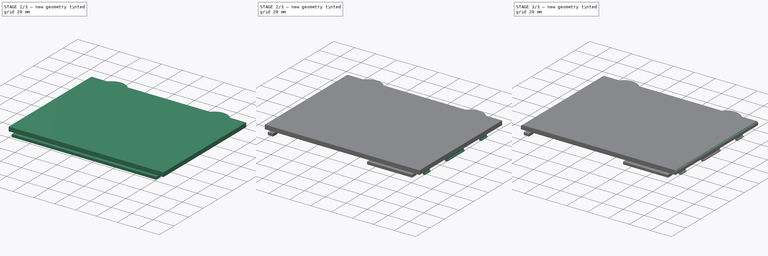
[diagram: build sequence overview — one tinted view per stage of 3, left to right]
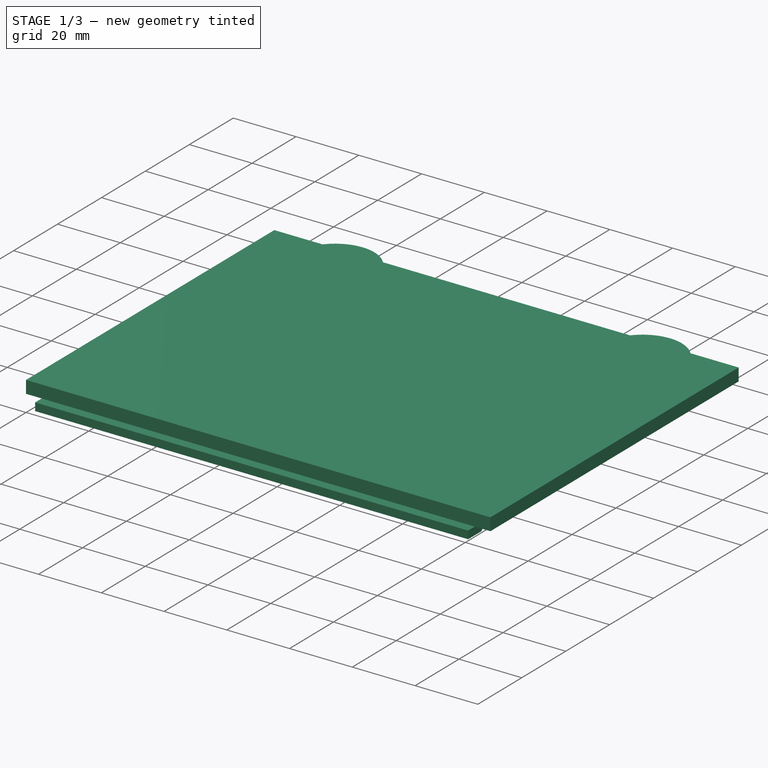
[diagram: stage 1 of 3 — iso view after this stage's code; geometry added in this stage tinted green]
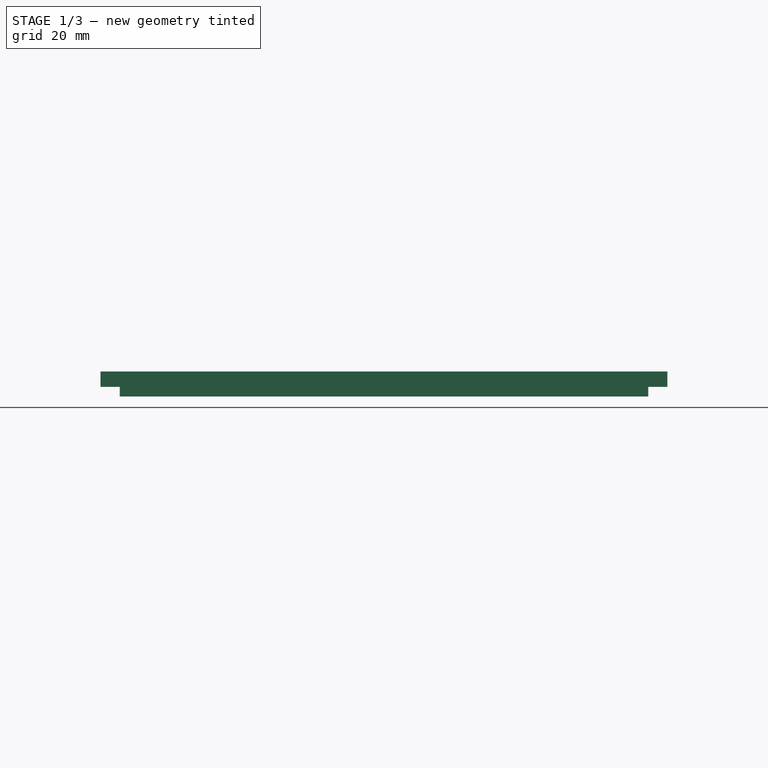
[diagram: stage 1 of 3 — front view after this stage's code; geometry added in this stage tinted green]
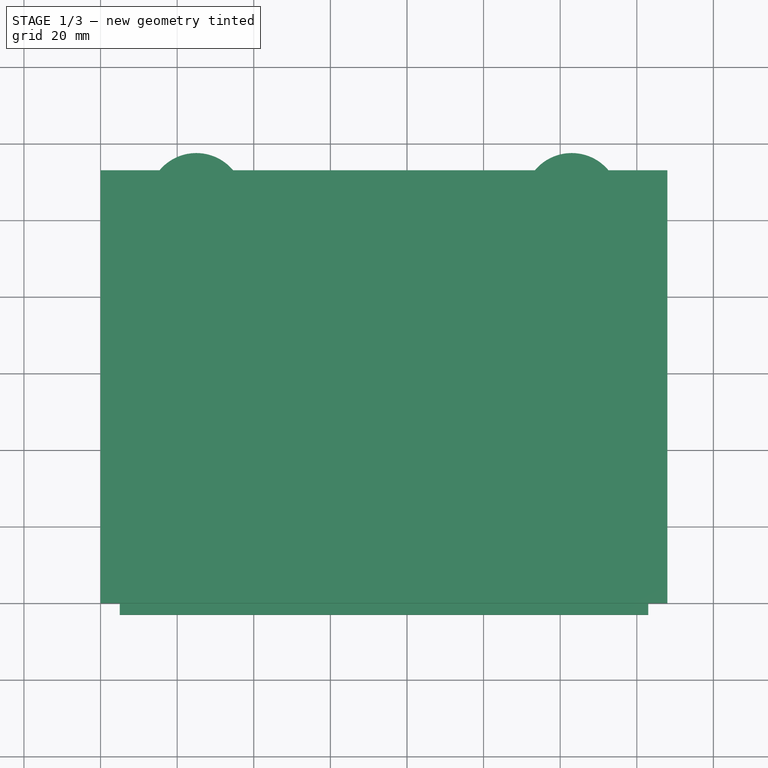
[diagram: stage 1 of 3 — top view after this stage's code; geometry added in this stage tinted green]
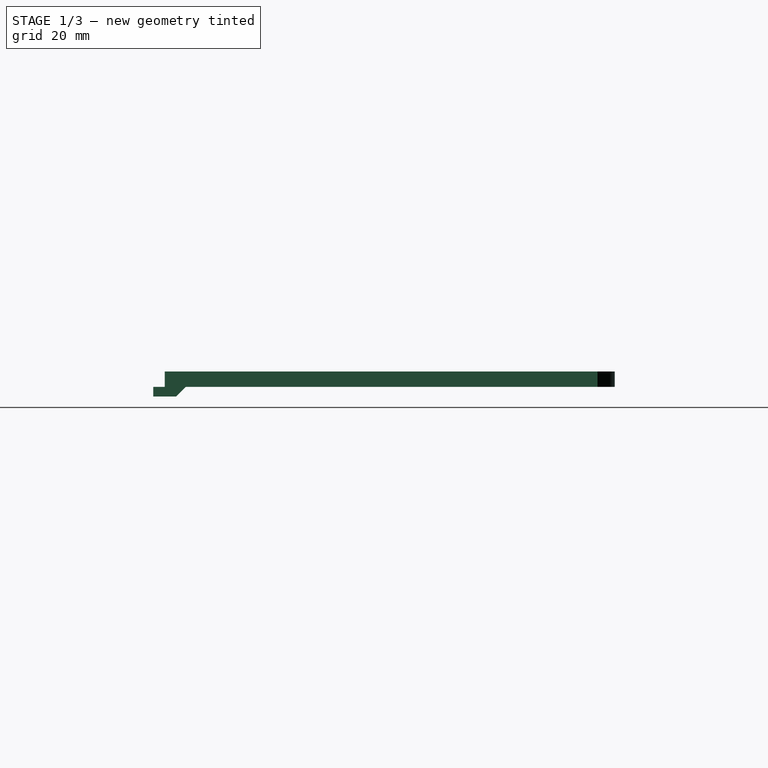
[diagram: stage 1 of 3 — right view after this stage's code; geometry added in this stage tinted green]
FCSTD DOCUMENT  (FreeCAD 0.21R33771 (Git))
Label: Lid
License: All rights reserved
LicenseURL: https://en.wikipedia.org/wiki/All_rights_reserved
objects: Sketcher::SketchObject×4, PartDesign::Pad×3, PartDesign::Fillet×2, PartDesign::Pocket×1, PartDesign::Body×1
note: 17 computed .brp shape members not serialized (recipe doc carries the construction recipe); baked Part::Feature solids carry a one-line shape summary decoded from their .brp

FEATURE [Sketcher::SketchObject] Sketch  label="Overall Outline"
  FullyConstrained = true
  MapMode = 5
  Support = -> [XY_Plane]
  sketch-geometry (8):
    g0: LineSegment StartX=0 StartY=0 StartZ=0 EndX=148 EndY=0 EndZ=0
    g1: LineSegment StartX=148 StartY=0 StartZ=0 EndX=148 EndY=113 EndZ=0
    g2: LineSegment StartX=0 StartY=113 StartZ=0 EndX=0 EndY=0 EndZ=0
    g3: ArcOfCircle CenterX=25 CenterY=105 CenterZ=0 NormalX=0 NormalY=0 NormalZ=1 AngleXU=0 Radius=12.5 StartAngle=0.694498 EndAngle=2.44709
    g4: ArcOfCircle CenterX=123 CenterY=105 CenterZ=0 NormalX=0 NormalY=0 NormalZ=1 AngleXU=0 Radius=12.5 StartAngle=0.694498 EndAngle=2.44709
    g5: LineSegment StartX=0 StartY=113 StartZ=0 EndX=15.3953 EndY=113 EndZ=0
    g6: LineSegment StartX=34.6047 StartY=113 StartZ=0 EndX=113.395 EndY=113 EndZ=0
    g7: LineSegment StartX=132.605 StartY=113 StartZ=0 EndX=148 EndY=113 EndZ=0
  constraints (25):
    c: Coincident(g0,g1)
    c: Coincident(g2,g0)
    c: Horizontal(g0)
    c: Vertical(g1)
    c: Vertical(g2)
    c: Coincident(g0,g-1)
    c: DistanceX(g0,g0) = 148
    c: DistanceY(g2,g2) = 113
    c: Coincident(g5,g2)
    c: Coincident(g5,g3)
    c: Horizontal(g5)
    c: Coincident(g6,g3)
    c: Coincident(g6,g4)
    c: Horizontal(g6)
    c: Coincident(g7,g4)
    c: Coincident(g7,g1)
    c: Horizontal(g7)
    c: Horizontal(g3,g4)
    c: DistanceY(g3) = 105
    c: Diameter(g3) = 25
    c: Horizontal(g3,g3)
    c: Horizontal(g4,g4)
    c: Equal(g3,g4)
    c: DistanceX(g2,g3) = 25
    c: DistanceX(g4,g1) = 25
FEATURE [PartDesign::Pad] Pad
  Direction = (0,0,1)
  Length = 4
  Length2 = 10
  Profile = -> Sketch
  ReferenceAxis = -> Sketch [N_Axis]
  Type = 0
FEATURE [Sketcher::SketchObject] Sketch001  label="Under catch"
  AttachmentOffset = pos=(0,0,-5) rot=(0,0,1;0rad)
  FullyConstrained = true
  MapMode = 5
  Placement = pos=(5,0,0) rot=(0.57735,-0.57735,-0.57735;2.0944rad)
  Support = -> [Pad]
  sketch-geometry (5):
    g0: LineSegment StartX=3 StartY=0 StartZ=0 EndX=3 EndY=-2.5 EndZ=0
    g1: LineSegment StartX=3 StartY=-2.5 StartZ=0 EndX=-3 EndY=-2.5 EndZ=0
    g2: LineSegment StartX=-3 StartY=-2.5 StartZ=0 EndX=-5.5 EndY=0 EndZ=0
    g3: LineSegment StartX=-5.5 StartY=0 StartZ=0 EndX=0 EndY=0 EndZ=0
    g4: LineSegment StartX=0 StartY=0 StartZ=0 EndX=3 EndY=0 EndZ=0
  constraints (14):
    c: PointOnObject(g0,g-1)
    c: Coincident(g1,g0)
    c: Horizontal(g1)
    c: Coincident(g2,g1)
    c: PointOnObject(g2,g-1)
    c: Coincident(g3,g2)
    c: DistanceX(g3,g3) = 5.5
    c: Coincident(g3,g-1)
    c: DistanceY(g2,g2) = 2.5
    c: DistanceX(g1,g1) = 6
    c: Coincident(g4,g3)
    c: Coincident(g4,g0)
    c: DistanceX(g0) = 3
    c: Vertical(g0)
FEATURE [PartDesign::Pad] Pad001
  BaseFeature = -> Pad
  Direction = (-1,0,0)
  Length = 138
  Length2 = 10
  Profile = -> Sketch001
  ReferenceAxis = -> Sketch001 [N_Axis]
  Reversed = true
  Type = 0
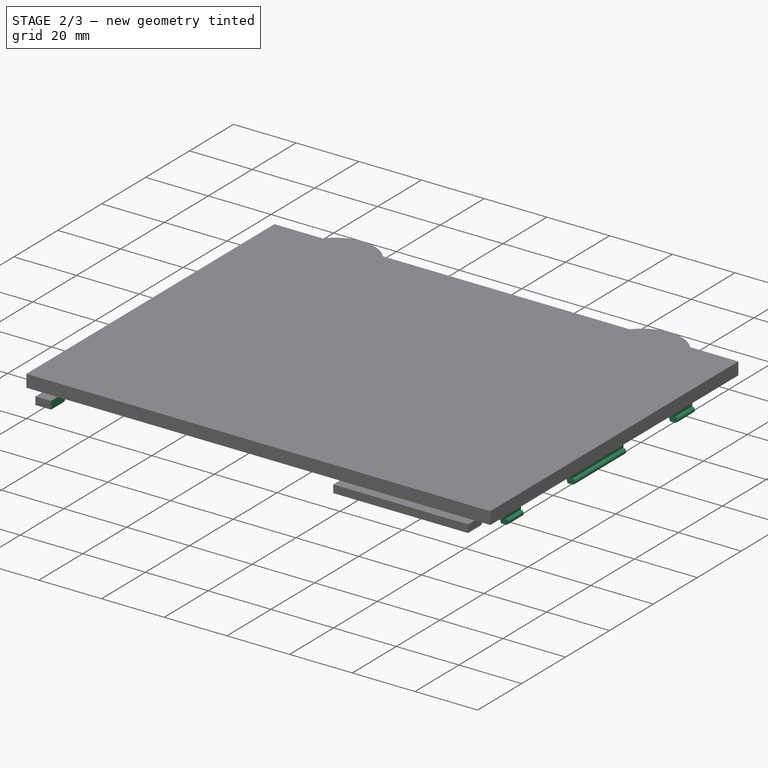
[diagram: stage 2 of 3 — iso view after this stage's code; geometry added in this stage tinted green]
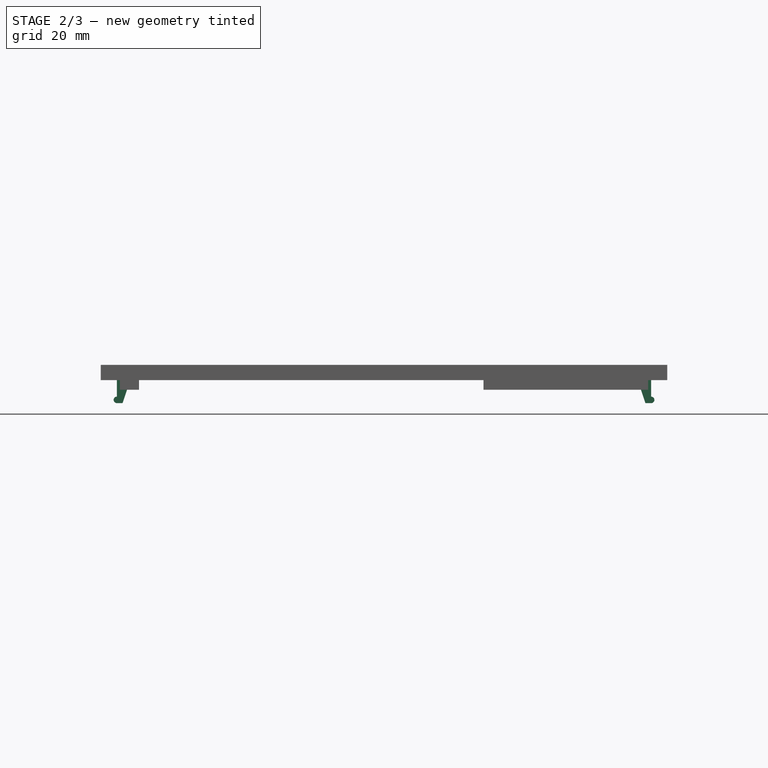
[diagram: stage 2 of 3 — front view after this stage's code; geometry added in this stage tinted green]
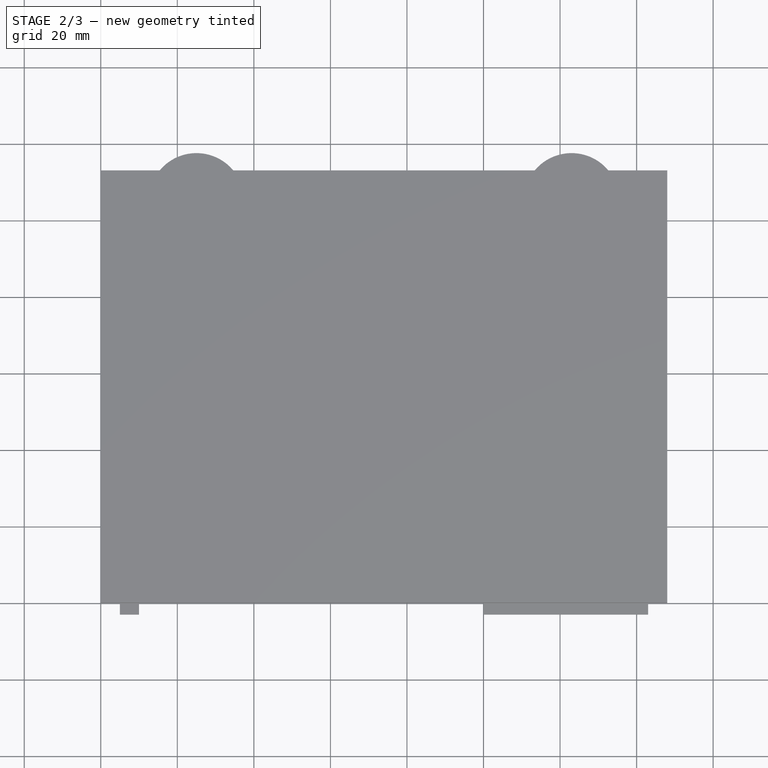
[diagram: stage 2 of 3 — top view after this stage's code; geometry added in this stage tinted green]
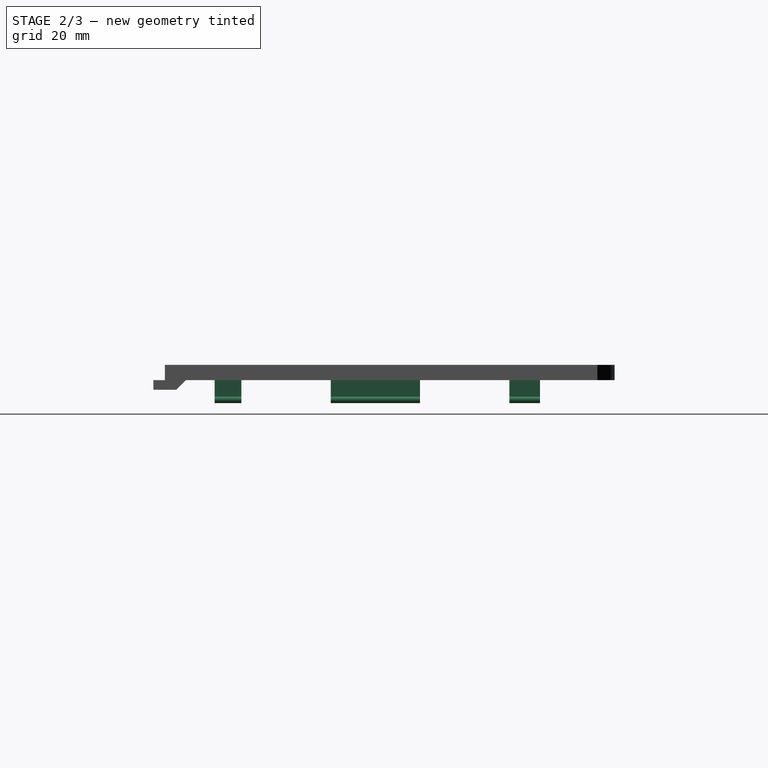
[diagram: stage 2 of 3 — right view after this stage's code; geometry added in this stage tinted green]
FEATURE [Sketcher::SketchObject] Sketch002
  AttachmentOffset = pos=(0,0,-13) rot=(0,0,1;0rad)
  FullyConstrained = true
  MapMode = 5
  Placement = pos=(0,13,-2.9e-15) rot=(1,0,0;1.5708rad)
  Support = -> [Pad001]
  sketch-geometry (10):
    g0: LineSegment StartX=143.8 StartY=0 StartZ=0 EndX=140.3 EndY=0 EndZ=0
    g1: LineSegment StartX=142.3 StartY=-6 StartZ=0 EndX=143.8 EndY=-6 EndZ=0
    g2: LineSegment StartX=143.8 StartY=0 StartZ=0 EndX=143.8 EndY=-4.3 EndZ=0
    g3: ArcOfCircle CenterX=143.8 CenterY=-5.15 CenterZ=0 NormalX=0 NormalY=0 NormalZ=1 AngleXU=0 Radius=0.85 StartAngle=4.71239 EndAngle=7.85398
    g4: LineSegment StartX=4.2 StartY=0 StartZ=0 EndX=4.2 EndY=-4.3 EndZ=0
    g5: LineSegment StartX=4.2 StartY=-6 StartZ=0 EndX=5.7 EndY=-6 EndZ=0
    g6: LineSegment StartX=5.7 StartY=-6 StartZ=0 EndX=7.7 EndY=0 EndZ=0
    g7: LineSegment StartX=7.7 StartY=0 StartZ=0 EndX=4.2 EndY=0 EndZ=0
    g8: ArcOfCircle CenterX=4.2 CenterY=-5.15 CenterZ=0 NormalX=0 NormalY=0 NormalZ=1 AngleXU=0 Radius=0.85 StartAngle=1.5708 EndAngle=4.71239
    g9: LineSegment StartX=140.3 StartY=0 StartZ=0 EndX=142.3 EndY=-6 EndZ=0
  constraints (32):
    c: Horizontal(g1)
    c: Coincident(g2,g0)
    c: Coincident(g3,g1)
    c: Coincident(g3,g2)
    c: Vertical(g4)
    c: Horizontal(g5)
    c: Coincident(g7,g6)
    c: Coincident(g7,g4)
    c: Horizontal(g7)
    c: Coincident(g8,g4)
    c: Coincident(g8,g5)
    c: Coincident(g9,g0)
    c: Coincident(g9,g1)
    c: Horizontal(g0)
    c: Equal(g0,g7)
    c: DistanceX(g4,g0) = 139.6
    c: Equal(g5,g1)
    c: Coincident(g6,g5)
    c: DistanceX(g0,g0) = 3.5
    c: DistanceX(g1,g1) = 1.5
    c: Vertical(g1,g0)
    c: Vertical(g5,g4)
    c: DistanceY(g1) = -6
    c: Horizontal(g1,g5)
    c: Equal(g2,g4)
    c: DistanceY(g2,g2) = 4.3
    c: Vertical(g4,g8)
    c: Vertical(g2)
    c: Vertical(g2,g3)
    c: PointOnObject(g0,g-1)
    c: DistanceX(g0) = 143.8
    c: PointOnObject(g4,g-1)
FEATURE [PartDesign::Pad] Pad002
  BaseFeature = -> Pad001
  Direction = (0,-1,2e-16)
  Length = 85
  Length2 = 10
  Profile = -> Sketch002
  ReferenceAxis = -> Sketch002 [N_Axis]
  Reversed = true
  Type = 0
FEATURE [Sketcher::SketchObject] Sketch003  label="Under side cutouts"
  FullyConstrained = true
  MapMode = 5
  Placement = pos=(0,0,0) rot=(1,0,0;3.14159rad)
  Support = -> [Pad002]
  sketch-geometry (16):
    g0: LineSegment StartX=100 StartY=10 StartZ=0 EndX=10 EndY=10 EndZ=0
    g1: LineSegment StartX=10 StartY=10 StartZ=0 EndX=10 EndY=-20 EndZ=0
    g2: LineSegment StartX=10 StartY=-20 StartZ=0 EndX=-10 EndY=-20 EndZ=0
    g3: LineSegment StartX=-10 StartY=-20 StartZ=0 EndX=-10 EndY=-43.3333 EndZ=0
    g4: LineSegment StartX=-10 StartY=-43.3333 StartZ=0 EndX=10 EndY=-43.3333 EndZ=0
    g5: LineSegment StartX=10 StartY=-43.3333 StartZ=0 EndX=10 EndY=-66.6667 EndZ=0
    g6: LineSegment StartX=10 StartY=-66.6667 StartZ=0 EndX=-10 EndY=-66.6667 EndZ=0
    g7: LineSegment StartX=-10 StartY=-66.6667 StartZ=0 EndX=-10 EndY=-90 EndZ=0
    g8: LineSegment StartX=-10 StartY=-90 StartZ=0 EndX=158 EndY=-90 EndZ=0
    g9: LineSegment StartX=158 StartY=-90 StartZ=0 EndX=158 EndY=-66.6667 EndZ=0
    g10: LineSegment StartX=158 StartY=-66.6667 StartZ=0 EndX=100 EndY=-66.6667 EndZ=0
    g11: LineSegment StartX=100 StartY=-66.6667 StartZ=0 EndX=100 EndY=-43.3333 EndZ=0
    g12: LineSegment StartX=100 StartY=-43.3333 StartZ=0 EndX=158 EndY=-43.3333 EndZ=0
    g13: LineSegment StartX=158 StartY=-43.3333 StartZ=0 EndX=158 EndY=-20 EndZ=0
    g14: LineSegment StartX=158 StartY=-20 StartZ=0 EndX=100 EndY=-20 EndZ=0
    g15: LineSegment StartX=100 StartY=10 StartZ=0 EndX=100 EndY=-20 EndZ=0
  constraints (48):
    c: Horizontal(g0)
    c: Vertical(g1)
    c: Coincident(g2,g1)
    c: Horizontal(g2)
    c: Vertical(g3)
    c: Horizontal(g4)
    c: Coincident(g5,g4)
    c: Vertical(g5)
    c: Coincident(g6,g5)
    c: Horizontal(g6)
    c: Coincident(g7,g6)
    c: Vertical(g7)
    c: Coincident(g8,g7)
    c: Horizontal(g8)
    c: Vertical(g9)
    c: Coincident(g10,g9)
    c: Horizontal(g10)
    c: Vertical(g11)
    c: Horizontal(g12)
    c: Coincident(g13,g12)
    c: Vertical(g13)
    c: Coincident(g14,g13)
    c: Horizontal(g14)
    c: Coincident(g11,g12)
    c: Coincident(g11,g10)
    c: Coincident(g8,g9)
    c: Coincident(g3,g4)
    c: Coincident(g3,g2)
    c: Coincident(g0,g1)
    c: Coincident(g15,g0)
    c: Vertical(g15)
    c: Vertical(g3,g6)
    c: Vertical(g12,g9)
    c: Vertical(g14,g11)
    c: Vertical(g1,g4)
    c: Equal(g5,g11)
    c: Equal(g7,g9)
    c: Equal(g3,g13)
    c: Coincident(g14,g15)
    c: Equal(g13,g11)
    c: Equal(g11,g9)
    c: DistanceX(g0,g0) = 90
    c: DistanceX(g0) = 10
    c: DistanceX(g2) = -10
    c: DistanceX(g13) = 158
    c: DistanceY(g7) = -90
    c: DistanceY(g2) = -20
    c: DistanceY(g0) = 10
FEATURE [PartDesign::Pocket] Pocket
  BaseFeature = -> Pad002
  Direction = (0,0,1)
  Length = 10
  Length2 = 5
  Profile = -> Sketch003
  ReferenceAxis = -> Sketch003 [N_Axis]
  Reversed = true
  Type = 0
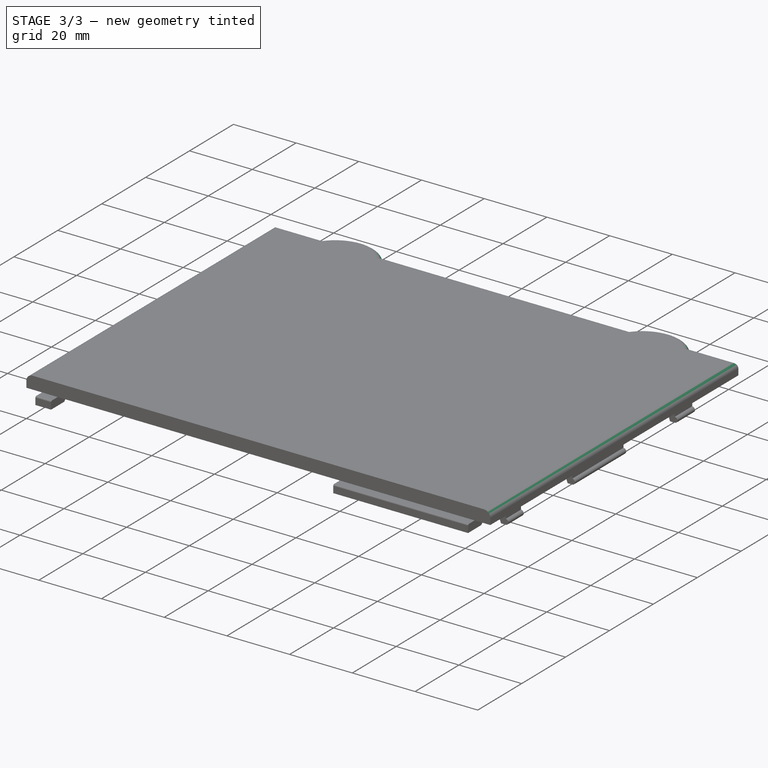
[diagram: stage 3 of 3 — iso view after this stage's code; geometry added in this stage tinted green]
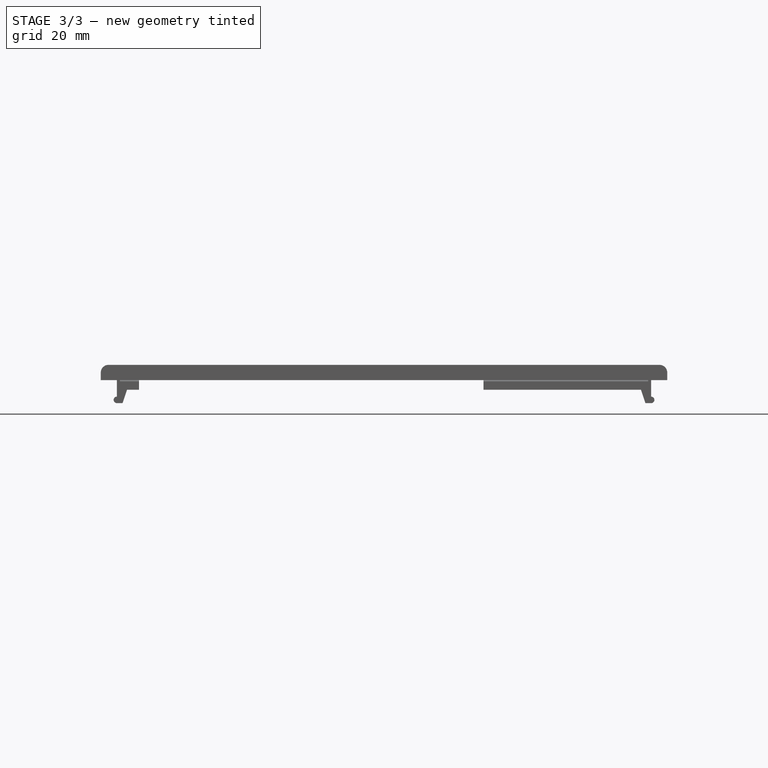
[diagram: stage 3 of 3 — front view after this stage's code; geometry added in this stage tinted green]
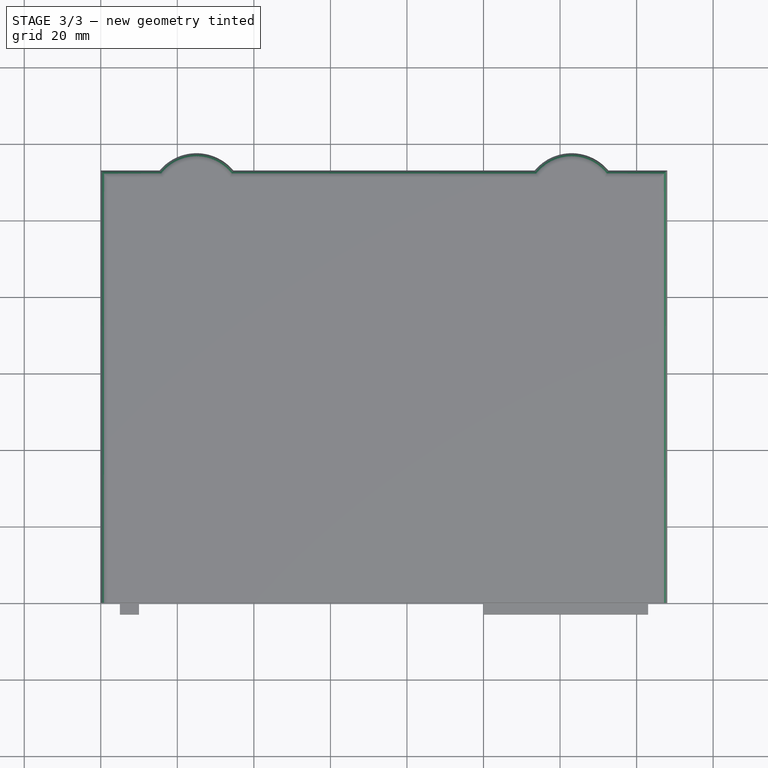
[diagram: stage 3 of 3 — top view after this stage's code; geometry added in this stage tinted green]
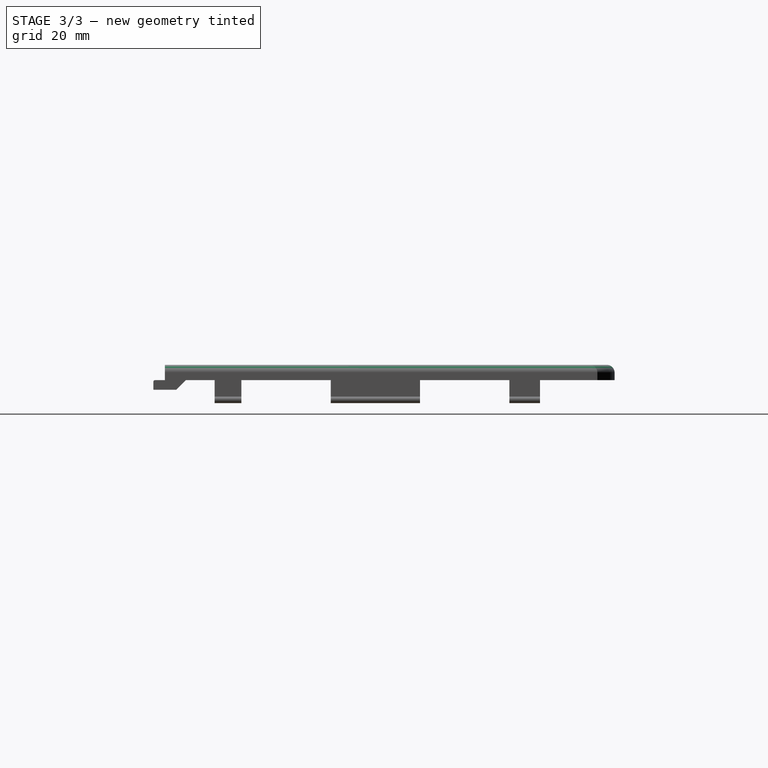
[diagram: stage 3 of 3 — right view after this stage's code; geometry added in this stage tinted green]
FEATURE [PartDesign::Fillet] Fillet
  Base = -> Pocket [Edge121,Edge118]
  BaseFeature = -> Pocket
  Radius = 0.4
  SupportTransform = false
  UseAllEdges = false
FEATURE [PartDesign::Fillet] Fillet001
  Base = -> Fillet [Edge38,Edge60,Edge59,Edge63,Edge45,Edge61,Edge62]
  BaseFeature = -> Fillet
  Radius = 2
  SupportTransform = false
  UseAllEdges = false
FEATURE [PartDesign::Body] Body
  Group = -> [Sketch,Pad,Sketch001,Pad001,Sketch002,Pad002,Sketch003,Pocket,Fillet,Fillet001]
  Origin = -> Origin
  Tip = -> Fillet001
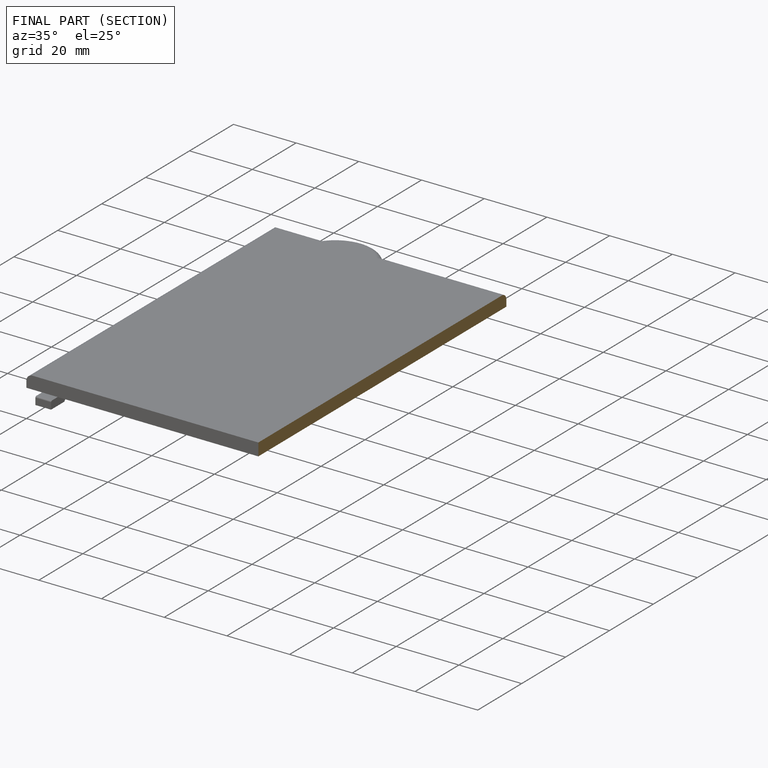
[diagram: finished part — half-section view (interior)]
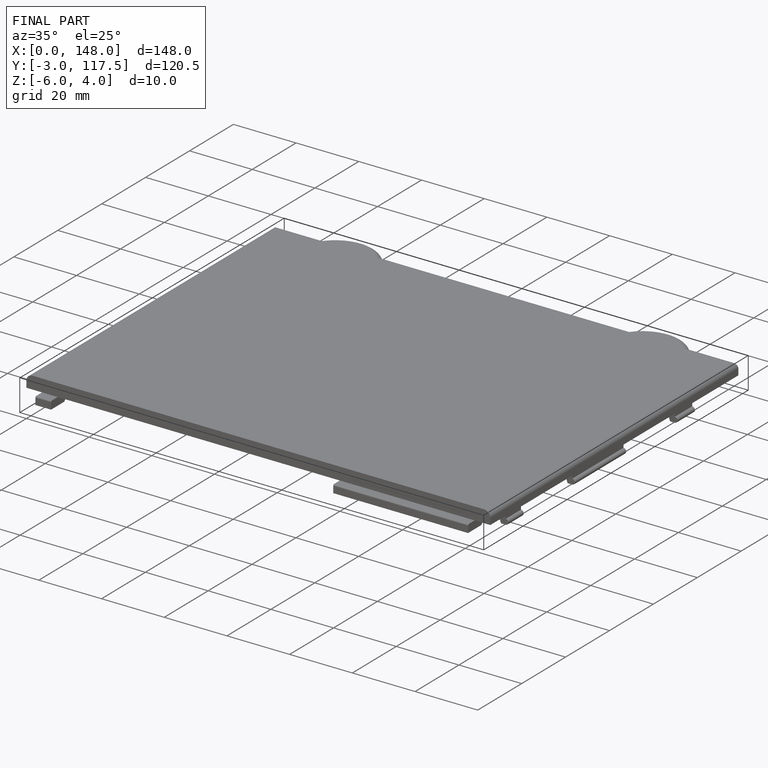
[diagram: finished part — iso view with bounding-box wireframe]
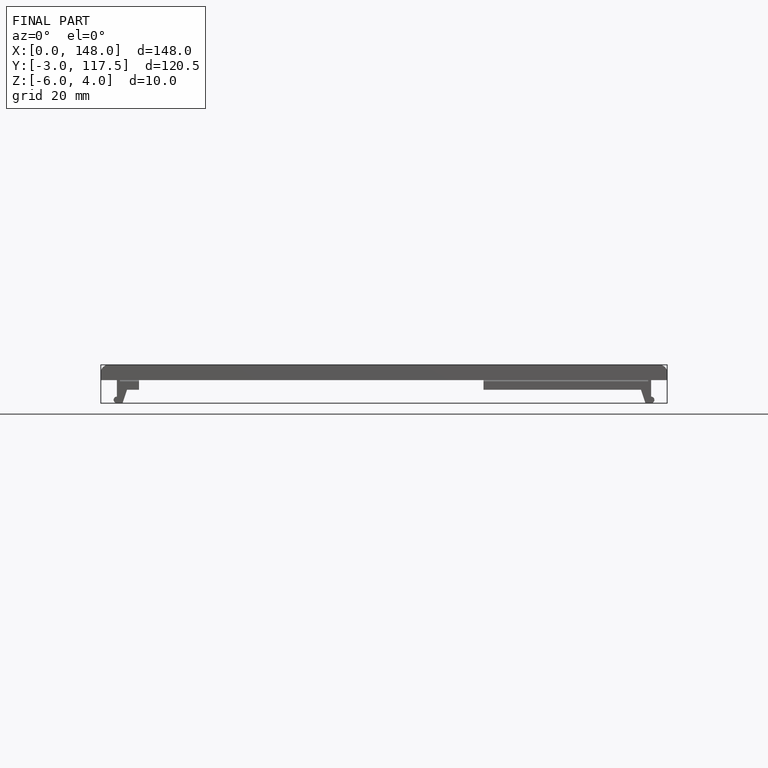
[diagram: finished part — front view with bounding-box wireframe]
